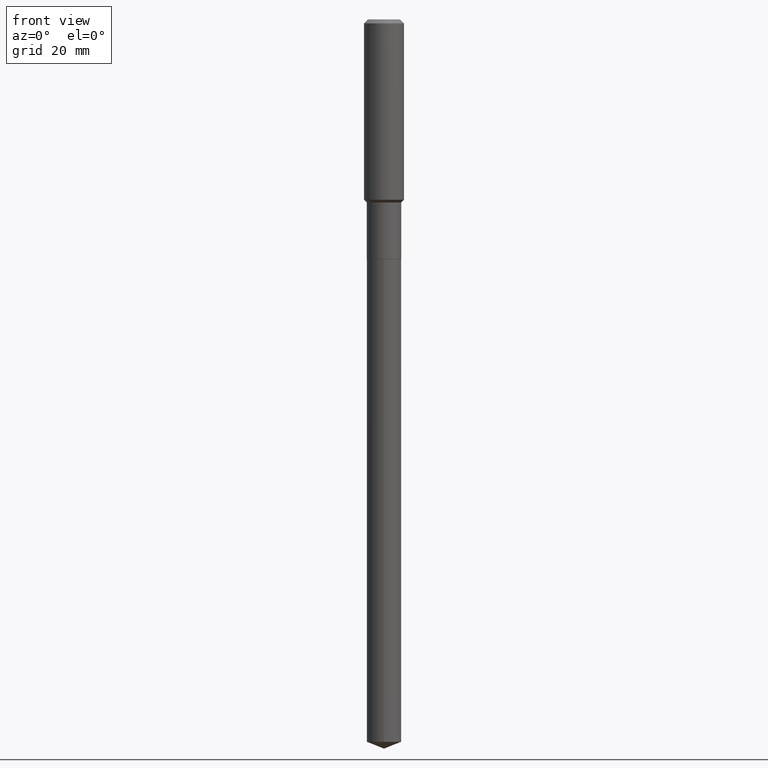
[diagram: clean part render]
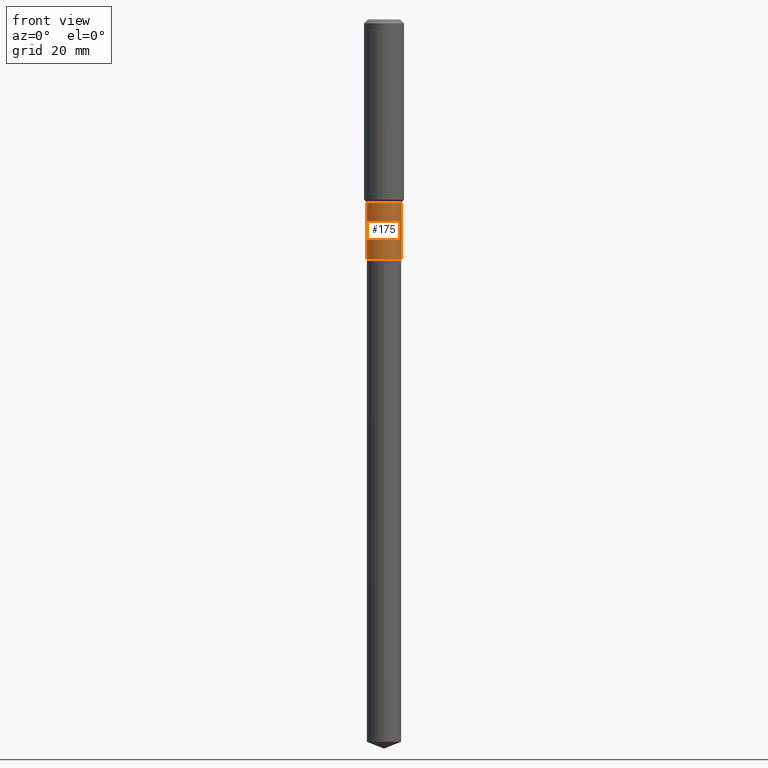
[diagram: same view with one face highlighted and labeled with its STEP entity id]
A machine part, front view. The second image highlights one B-rep face of the part: STEP entity #175.
In plain terms, the highlighted cylindrical surface (edge-blend (fillet) strip) has radius 4.3002 mm, axis along (-0, 0, 1).
Its self-contained STEP definition (entity closure, byte-faithful):
#7 = CYLINDRICAL_SURFACE ( 'NONE', #154, 0.1692999999999999783 ) ;
#9 = VERTEX_POINT ( 'NONE', #83 ) ;
#11 = CARTESIAN_POINT ( 'NONE',  ( -0.1692999999999999783, 1.202948851641849460E-15, -8.327757107801554310E-30 ) ) ;
#32 = DIRECTION ( 'NONE',  ( -2.445468806185136877E-29, 3.491481338843145188E-15, 1.000000000000000000 ) ) ;
#47 = CARTESIAN_POINT ( 'NONE',  ( -0.1693000000000000338, -6.053396814875857644E-15, -2.357399999999999718 ) ) ;
#75 = VECTOR ( 'NONE', #32, 39.37007874015748143 ) ;
#83 = CARTESIAN_POINT ( 'NONE',  ( 0.1692999999999999505, -7.464088806178870959E-15, -1.799199999999999688 ) ) ;
#88 = CARTESIAN_POINT ( 'NONE',  ( 5.764948163700840429E-29, -8.230818108188830037E-15, -2.357399999999999718 ) ) ;
#96 = DIRECTION ( 'NONE',  ( -2.445468806185136597E-29, 3.491481338843145583E-15, 1.000000000000000000 ) ) ;
#117 = ORIENTED_EDGE ( 'NONE', *, *, #388, .T. ) ;
#132 = CARTESIAN_POINT ( 'NONE',  ( 0.1693000000000000338, -9.413033689521114852E-15, -2.357399999999999718 ) ) ;
#146 = FACE_OUTER_BOUND ( 'NONE', #483, .T. ) ;
#154 = AXIS2_PLACEMENT_3D ( 'NONE', #232, #315, #224 ) ;
#161 = CARTESIAN_POINT ( 'NONE',  ( 4.399887476088297056E-29, -6.281873224846586144E-15, -1.799199999999999688 ) ) ;
#175 = ADVANCED_FACE ( 'NONE', ( #146 ), #7, .T. ) ;
#182 = LINE ( 'NONE', #417, #75 ) ;
#216 = EDGE_CURVE ( 'NONE', #345, #9, #182, .T. ) ;
#224 = DIRECTION ( 'NONE',  ( 1.000000000000000000, -6.982962677686266711E-15, 4.876176775795935793E-29 ) ) ;
#232 = CARTESIAN_POINT ( 'NONE',  ( 0.000000000000000000, 0.000000000000000000, 0.000000000000000000 ) ) ;
#247 = DIRECTION ( 'NONE',  ( 1.000000000000000000, -6.982962677686266711E-15, 0.000000000000000000 ) ) ;
#269 = AXIS2_PLACEMENT_3D ( 'NONE', #161, #96, #247 ) ;
#297 = AXIS2_PLACEMENT_3D ( 'NONE', #88, #394, #320 ) ;
#314 = CIRCLE ( 'NONE', #269, 0.1692999999999999505 ) ;
#315 = DIRECTION ( 'NONE',  ( -2.445468806185136597E-29, 3.491481338843145583E-15, 1.000000000000000000 ) ) ;
#320 = DIRECTION ( 'NONE',  ( 1.000000000000000000, -6.982962677686263555E-15, 0.000000000000000000 ) ) ;
#334 = VERTEX_POINT ( 'NONE', #473 ) ;
#336 = VECTOR ( 'NONE', #404, 39.37007874015748143 ) ;
#345 = VERTEX_POINT ( 'NONE', #132 ) ;
#388 = EDGE_CURVE ( 'NONE', #450, #345, #413, .T. ) ;
#394 = DIRECTION ( 'NONE',  ( -2.445468806185136597E-29, 3.491481338843145583E-15, 1.000000000000000000 ) ) ;
#404 = DIRECTION ( 'NONE',  ( -2.445468806185136877E-29, 3.491481338843145188E-15, 1.000000000000000000 ) ) ;
#413 = CIRCLE ( 'NONE', #297, 0.1693000000000000338 ) ;
#417 = CARTESIAN_POINT ( 'NONE',  ( 0.1692999999999999783, -1.182215581332284815E-15, 8.255367281422518423E-30 ) ) ;
#420 = ORIENTED_EDGE ( 'NONE', *, *, #429, .F. ) ;
#422 = ORIENTED_EDGE ( 'NONE', *, *, #442, .F. ) ;
#429 = EDGE_CURVE ( 'NONE', #450, #334, #434, .T. ) ;
#434 = LINE ( 'NONE', #11, #336 ) ;
#442 = EDGE_CURVE ( 'NONE', #334, #9, #314, .T. ) ;
#444 = ORIENTED_EDGE ( 'NONE', *, *, #216, .T. ) ;
#450 = VERTEX_POINT ( 'NONE', #47 ) ;
#473 = CARTESIAN_POINT ( 'NONE',  ( -0.1692999999999999505, -6.053396814875858433E-15, -1.799199999999999688 ) ) ;
#483 = EDGE_LOOP ( 'NONE', ( #420, #117, #444, #422 ) ) ;